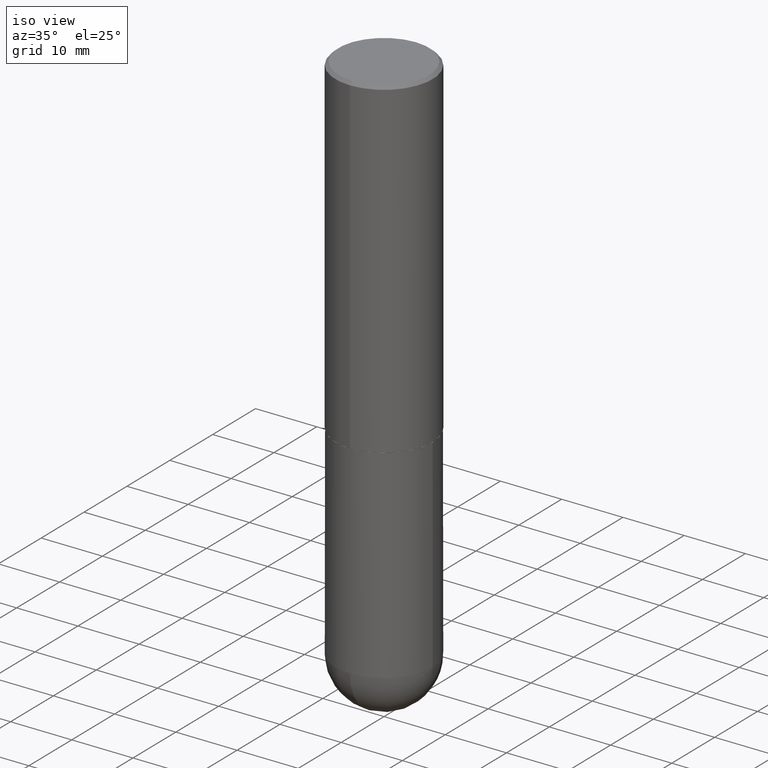
[diagram: clean part render]
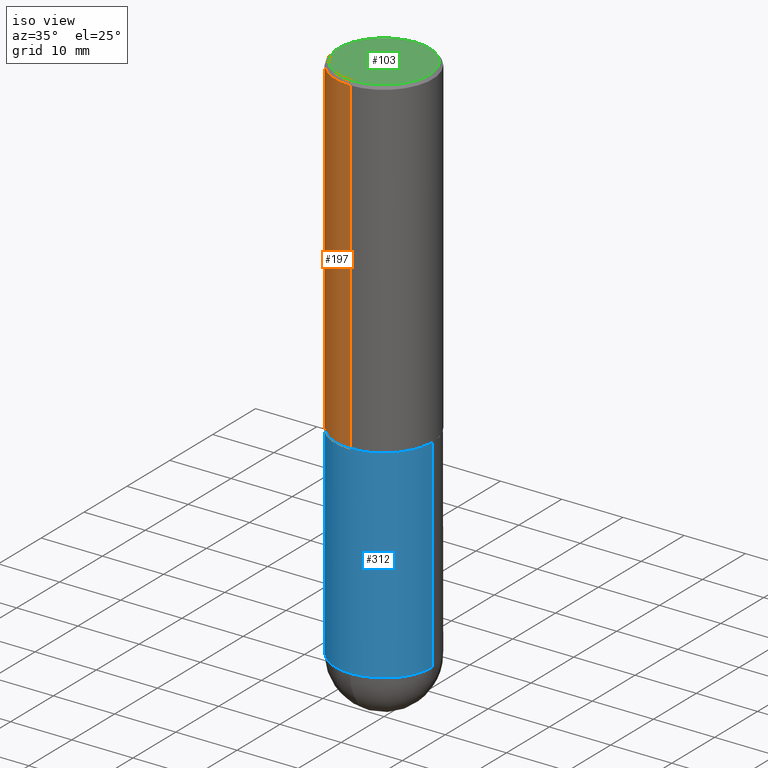
[diagram: same view with three faces highlighted in distinct colors, each labeled with its STEP entity id]
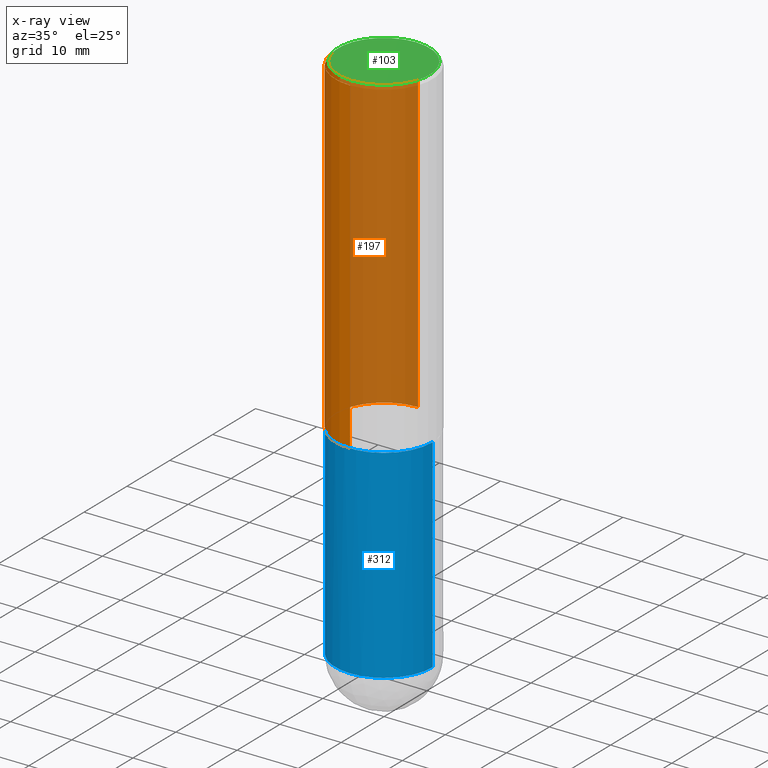
[diagram: x-ray of the same camera — body ghosted, the three highlighted faces saturated]
A machine part, iso view with three faces highlighted in distinct colors.
The next image is the same camera in x-ray (body ghosted, the three faces saturated) — at least one of them is partly hidden behind the body in this view.
Their STEP definitions:

[orange] entity #197 — the highlighted cylindrical surface (partial cylindrical patch) has radius 7.9375 mm, axis along (-0, 0, 1).
#17 = DIRECTION ( 'NONE',  ( -2.445875633042326285E-29, 3.490898739628503130E-15, 1.000000000000000000 ) ) ;
#20 = VERTEX_POINT ( 'NONE', #322 ) ;
#53 = VERTEX_POINT ( 'NONE', #380 ) ;
#57 = VECTOR ( 'NONE', #62, 39.37007874015748143 ) ;
#62 = DIRECTION ( 'NONE',  ( -2.445875633042326005E-29, 3.490898739628503130E-15, 1.000000000000000000 ) ) ;
#68 = EDGE_CURVE ( 'NONE', #172, #86, #352, .T. ) ;
#86 = VERTEX_POINT ( 'NONE', #192 ) ;
#105 = CARTESIAN_POINT ( 'NONE',  ( -2.182175836776959136E-15, -0.3125000000000001665, 1.090905856133907647E-15 ) ) ;
#111 = AXIS2_PLACEMENT_3D ( 'NONE', #260, #334, #236 ) ;
#114 = ORIENTED_EDGE ( 'NONE', *, *, #68, .F. ) ;
#147 = ORIENTED_EDGE ( 'NONE', *, *, #303, .T. ) ;
#151 = CIRCLE ( 'NONE', #253, 0.3125000000000000000 ) ;
#160 = CARTESIAN_POINT ( 'NONE',  ( 2.220446049250340297E-15, 0.3124999999999928391, -2.129000000000000892 ) ) ;
#172 = VERTEX_POINT ( 'NONE', #160 ) ;
#186 = CARTESIAN_POINT ( 'NONE',  ( 2.220446049250313475E-15, 0.3125000000000001665, -1.090905856133907647E-15 ) ) ;
#192 = CARTESIAN_POINT ( 'NONE',  ( 2.182175836776958741E-15, 0.3124999999999999445, -0.02000000000000116268 ) ) ;
#197 = ADVANCED_FACE ( 'NONE', ( #388 ), #294, .T. ) ;
#205 = DIRECTION ( 'NONE',  ( -2.445875633042326285E-29, 3.490898739628503130E-15, 1.000000000000000000 ) ) ;
#212 = DIRECTION ( 'NONE',  ( -6.982962677686265922E-15, -1.000000000000000000, 3.496765431890253764E-15 ) ) ;
#217 = ORIENTED_EDGE ( 'NONE', *, *, #382, .F. ) ;
#235 = DIRECTION ( 'NONE',  ( -2.445875633042326005E-29, 3.490898739628503130E-15, 1.000000000000000000 ) ) ;
#236 = DIRECTION ( 'NONE',  ( -6.982962677686265133E-15, -1.000000000000000000, 3.490898739628502736E-15 ) ) ;
#245 = EDGE_LOOP ( 'NONE', ( #114, #333, #147, #217 ) ) ;
#253 = AXIS2_PLACEMENT_3D ( 'NONE', #393, #17, #343 ) ;
#259 = AXIS2_PLACEMENT_3D ( 'NONE', #265, #205, #212 ) ;
#260 = CARTESIAN_POINT ( 'NONE',  ( 0.000000000000000000, 0.000000000000000000, 0.000000000000000000 ) ) ;
#265 = CARTESIAN_POINT ( 'NONE',  ( 5.207269222747112096E-29, -7.432123416669082885E-15, -2.129000000000000004 ) ) ;
#294 = CYLINDRICAL_SURFACE ( 'NONE', #111, 0.3125000000000001665 ) ;
#298 = CIRCLE ( 'NONE', #259, 0.3125000000000002776 ) ;
#303 = EDGE_CURVE ( 'NONE', #53, #20, #387, .T. ) ;
#322 = CARTESIAN_POINT ( 'NONE',  ( -2.143905624303602824E-15, -0.3125000000000000555, -0.01999999999999897693 ) ) ;
#333 = ORIENTED_EDGE ( 'NONE', *, *, #350, .T. ) ;
#334 = DIRECTION ( 'NONE',  ( -2.445875633042326285E-29, 3.490898739628503130E-15, 1.000000000000000000 ) ) ;
#343 = DIRECTION ( 'NONE',  ( -6.982962677686265133E-15, -1.000000000000000000, 3.496765431890256920E-15 ) ) ;
#350 = EDGE_CURVE ( 'NONE', #172, #53, #298, .T. ) ;
#352 = LINE ( 'NONE', #186, #57 ) ;
#378 = VECTOR ( 'NONE', #235, 39.37007874015748143 ) ;
#380 = CARTESIAN_POINT ( 'NONE',  ( -2.182175836776907860E-15, -0.3125000000000077161, -2.128999999999998671 ) ) ;
#382 = EDGE_CURVE ( 'NONE', #86, #20, #151, .T. ) ;
#387 = LINE ( 'NONE', #105, #378 ) ;
#388 = FACE_OUTER_BOUND ( 'NONE', #245, .T. ) ;
#393 = CARTESIAN_POINT ( 'NONE',  ( 4.891751266084669456E-31, -6.981797479257029532E-17, -0.02000000000000006981 ) ) ;

[blue] entity #312 — the highlighted cylindrical surface (partial cylindrical patch) has radius 7.9375 mm, axis along (-0, 0, 1).
#4 = CYLINDRICAL_SURFACE ( 'NONE', #42, 0.3125000000000000000 ) ;
#12 = VERTEX_POINT ( 'NONE', #248 ) ;
#16 = AXIS2_PLACEMENT_3D ( 'NONE', #408, #123, #171 ) ;
#18 = VERTEX_POINT ( 'NONE', #240 ) ;
#27 = CARTESIAN_POINT ( 'NONE',  ( 0.3125000000000000000, -2.182175836776958347E-15, 1.523805242436230075E-29 ) ) ;
#29 = LINE ( 'NONE', #356, #150 ) ;
#38 = EDGE_CURVE ( 'NONE', #12, #18, #178, .T. ) ;
#42 = AXIS2_PLACEMENT_3D ( 'NONE', #72, #201, #261 ) ;
#44 = CARTESIAN_POINT ( 'NONE',  ( -0.3125000000000000000, -7.498965127754292608E-15, -2.129999999999999893 ) ) ;
#52 = DIRECTION ( 'NONE',  ( -2.445468806185136597E-29, 3.491481338843145583E-15, 1.000000000000000000 ) ) ;
#72 = CARTESIAN_POINT ( 'NONE',  ( 0.000000000000000000, 0.000000000000000000, 0.000000000000000000 ) ) ;
#91 = EDGE_CURVE ( 'NONE', #12, #385, #29, .T. ) ;
#92 = DIRECTION ( 'NONE',  ( 1.000000000000000000, -6.982962677686269077E-15, 0.000000000000000000 ) ) ;
#99 = EDGE_CURVE ( 'NONE', #185, #174, #290, .T. ) ;
#116 = ORIENTED_EDGE ( 'NONE', *, *, #99, .T. ) ;
#123 = DIRECTION ( 'NONE',  ( -2.445468806185136597E-29, 3.491481338843145583E-15, 1.000000000000000000 ) ) ;
#140 = CARTESIAN_POINT ( 'NONE',  ( 0.3125000000000000000, -1.190158701378156719E-14, -3.437499999999999556 ) ) ;
#142 = CARTESIAN_POINT ( 'NONE',  ( 5.208848557174341041E-29, -7.436855251735900237E-15, -2.129999999999999893 ) ) ;
#150 = VECTOR ( 'NONE', #319, 39.37007874015748143 ) ;
#152 = DIRECTION ( 'NONE',  ( -2.445468806185136597E-29, 3.491481338843145583E-15, 1.000000000000000000 ) ) ;
#162 = AXIS2_PLACEMENT_3D ( 'NONE', #381, #152, #92 ) ;
#163 = CIRCLE ( 'NONE', #16, 0.3125000000000000000 ) ;
#165 = EDGE_CURVE ( 'NONE', #18, #185, #163, .T. ) ;
#170 = AXIS2_PLACEMENT_3D ( 'NONE', #142, #52, #369 ) ;
#171 = DIRECTION ( 'NONE',  ( 1.000000000000000000, -6.982962677686269077E-15, 0.000000000000000000 ) ) ;
#174 = VERTEX_POINT ( 'NONE', #360 ) ;
#178 = CIRCLE ( 'NONE', #162, 0.3125000000000000000 ) ;
#182 = ORIENTED_EDGE ( 'NONE', *, *, #38, .T. ) ;
#185 = VERTEX_POINT ( 'NONE', #140 ) ;
#190 = DIRECTION ( 'NONE',  ( -2.445468806185136877E-29, 3.491481338843145188E-15, 1.000000000000000000 ) ) ;
#201 = DIRECTION ( 'NONE',  ( -2.445468806185136597E-29, 3.491481338843145583E-15, 1.000000000000000000 ) ) ;
#211 = ORIENTED_EDGE ( 'NONE', *, *, #404, .F. ) ;
#227 = ORIENTED_EDGE ( 'NONE', *, *, #165, .T. ) ;
#240 = CARTESIAN_POINT ( 'NONE',  ( -2.220446049250231828E-15, -0.3125000000000124345, -3.437499999999998668 ) ) ;
#248 = CARTESIAN_POINT ( 'NONE',  ( -0.3125000000000000000, -7.498965127754294186E-15, -3.437499999999999556 ) ) ;
#261 = DIRECTION ( 'NONE',  ( 1.000000000000000000, -6.982962677686266711E-15, 4.876176775795936353E-29 ) ) ;
#290 = LINE ( 'NONE', #27, #336 ) ;
#312 = ADVANCED_FACE ( 'NONE', ( #327 ), #4, .T. ) ;
#319 = DIRECTION ( 'NONE',  ( -2.445468806185136877E-29, 3.491481338843145188E-15, 1.000000000000000000 ) ) ;
#327 = FACE_OUTER_BOUND ( 'NONE', #345, .T. ) ;
#329 = CIRCLE ( 'NONE', #170, 0.3125000000000000000 ) ;
#336 = VECTOR ( 'NONE', #190, 39.37007874015748143 ) ;
#345 = EDGE_LOOP ( 'NONE', ( #367, #182, #227, #116, #211 ) ) ;
#356 = CARTESIAN_POINT ( 'NONE',  ( -0.3125000000000000000, 2.220446049250313081E-15, -1.537167215704658232E-29 ) ) ;
#360 = CARTESIAN_POINT ( 'NONE',  ( 0.3125000000000000000, -9.619031088512858584E-15, -2.129999999999999893 ) ) ;
#367 = ORIENTED_EDGE ( 'NONE', *, *, #91, .F. ) ;
#369 = DIRECTION ( 'NONE',  ( 1.000000000000000000, -6.982962677686265133E-15, 0.000000000000000000 ) ) ;
#381 = CARTESIAN_POINT ( 'NONE',  ( 8.406299021261405930E-29, -1.200196710227331114E-14, -3.437499999999999556 ) ) ;
#385 = VERTEX_POINT ( 'NONE', #44 ) ;
#404 = EDGE_CURVE ( 'NONE', #385, #174, #329, .T. ) ;
#408 = CARTESIAN_POINT ( 'NONE',  ( 8.406299021261405930E-29, -1.200196710227331114E-14, -3.437499999999999556 ) ) ;

[green] entity #103 — the highlighted planar face has unit normal (0, -0, -1).
#26 = FACE_OUTER_BOUND ( 'NONE', #130, .T. ) ;
#31 = DIRECTION ( 'NONE',  ( -6.982962677686265133E-15, -1.000000000000000000, 3.490898739628502736E-15 ) ) ;
#34 = AXIS2_PLACEMENT_3D ( 'NONE', #37, #326, #231 ) ;
#37 = CARTESIAN_POINT ( 'NONE',  ( -6.259982390047001361E-45, 8.934618073090526033E-31, 2.559403391357417530E-16 ) ) ;
#49 = ORIENTED_EDGE ( 'NONE', *, *, #254, .T. ) ;
#51 = CIRCLE ( 'NONE', #271, 0.2924999999999997602 ) ;
#98 = CARTESIAN_POINT ( 'NONE',  ( -6.259982390047001361E-45, 8.934618073090526033E-31, 2.559403391357417530E-16 ) ) ;
#103 = ADVANCED_FACE ( 'NONE', ( #26 ), #159, .F. ) ;
#119 = ORIENTED_EDGE ( 'NONE', *, *, #281, .T. ) ;
#130 = EDGE_LOOP ( 'NONE', ( #49, #119 ) ) ;
#133 = DIRECTION ( 'NONE',  ( -2.445875633042326285E-29, 3.490898739628503130E-15, 1.000000000000000000 ) ) ;
#154 = CARTESIAN_POINT ( 'NONE',  ( 2.042516583223230962E-15, 0.2924999999999997602, -8.931177117734654401E-16 ) ) ;
#159 = PLANE ( 'NONE',  #270 ) ;
#164 = CARTESIAN_POINT ( 'NONE',  ( 2.112346210000094654E-15, 0.2924999999999997602, -7.651475422055944157E-16 ) ) ;
#216 = CARTESIAN_POINT ( 'NONE',  ( -2.075300644325887099E-15, -0.2924999999999997602, 1.277028220477077922E-15 ) ) ;
#231 = DIRECTION ( 'NONE',  ( -6.982962677686265133E-15, -1.000000000000000000, 3.490898739628502736E-15 ) ) ;
#254 = EDGE_CURVE ( 'NONE', #341, #374, #364, .T. ) ;
#270 = AXIS2_PLACEMENT_3D ( 'NONE', #154, #285, #409 ) ;
#271 = AXIS2_PLACEMENT_3D ( 'NONE', #98, #133, #31 ) ;
#281 = EDGE_CURVE ( 'NONE', #374, #341, #51, .T. ) ;
#285 = DIRECTION ( 'NONE',  ( 2.445875633042326005E-29, -3.490898739628503130E-15, -1.000000000000000000 ) ) ;
#326 = DIRECTION ( 'NONE',  ( -2.445875633042326285E-29, 3.490898739628503130E-15, 1.000000000000000000 ) ) ;
#341 = VERTEX_POINT ( 'NONE', #164 ) ;
#364 = CIRCLE ( 'NONE', #34, 0.2924999999999997602 ) ;
#374 = VERTEX_POINT ( 'NONE', #216 ) ;
#409 = DIRECTION ( 'NONE',  ( 6.982962677686265922E-15, 1.000000000000000000, -3.490898739628503130E-15 ) ) ;